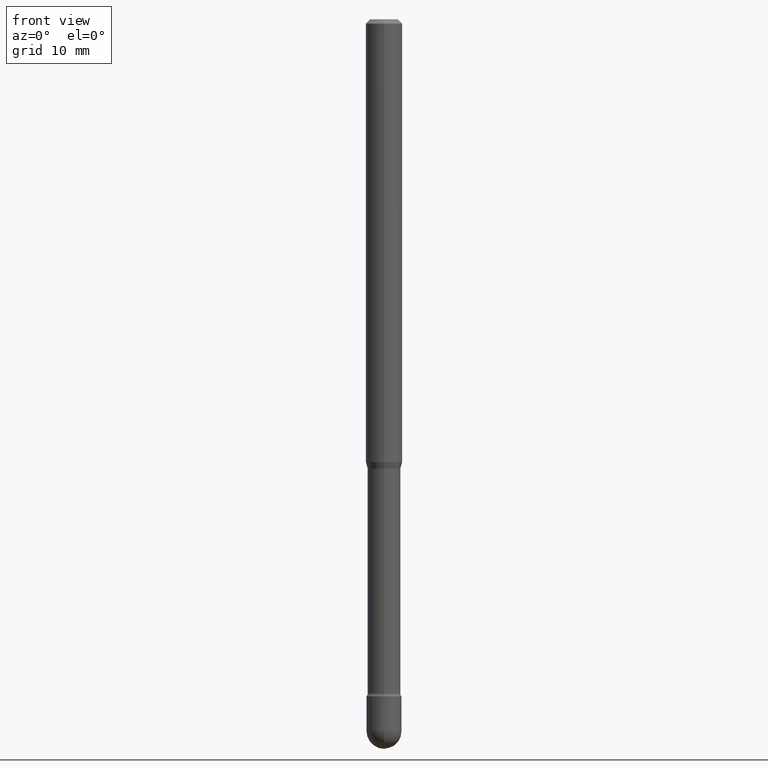
[diagram: clean part render]
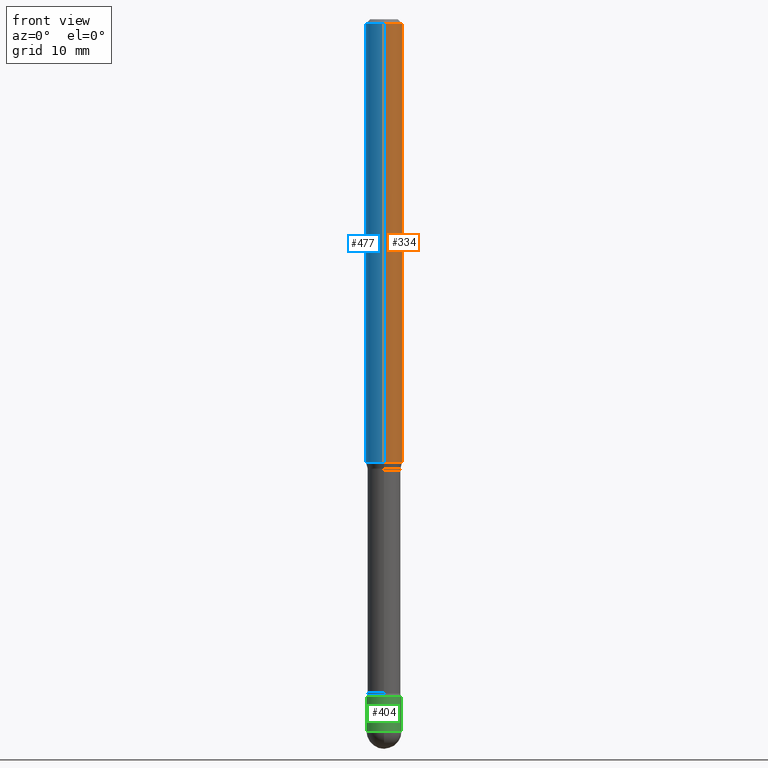
[diagram: same view with three faces highlighted in distinct colors, each labeled with its STEP entity id]
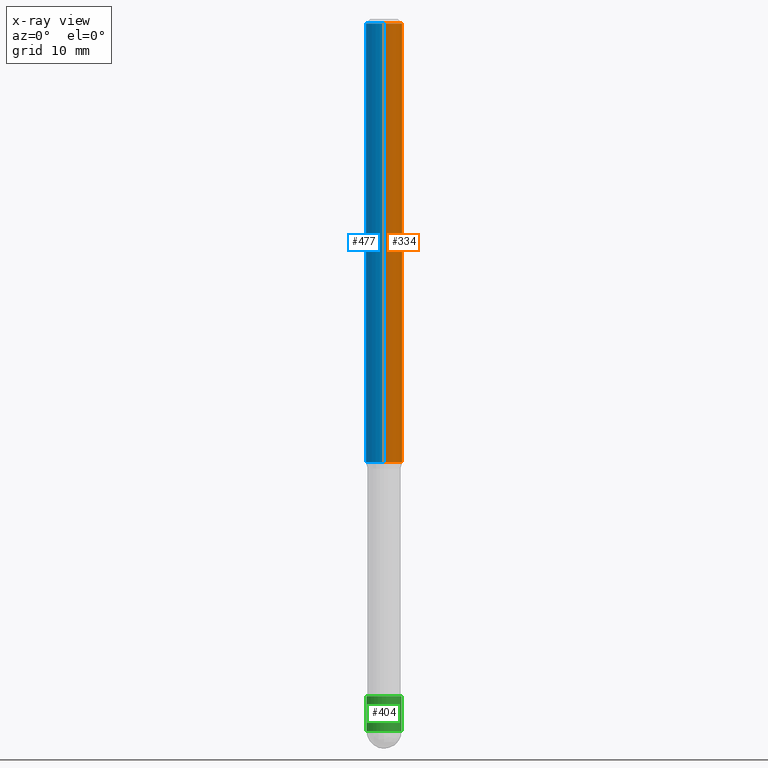
[diagram: x-ray of the same camera — body ghosted, the three highlighted faces saturated]
A machine part, front view with three faces highlighted in distinct colors.
The next image is the same camera in x-ray (body ghosted, the three faces saturated) — at least one of them is partly hidden behind the body in this view.
Their STEP definitions:

[orange] entity #334 — the highlighted cylindrical surface (edge-blend (fillet) strip) has radius 1.5875 mm, axis along (-0, 0, 1).
#12 = ORIENTED_EDGE ( 'NONE', *, *, #186, .T. ) ;
#19 = CARTESIAN_POINT ( 'NONE',  ( 3.668272627455988517E-31, -5.237122597482436421E-17, -0.01500000000000008271 ) ) ;
#29 = CARTESIAN_POINT ( 'NONE',  ( 3.710419832913296213E-29, -5.297295355763567225E-15, -1.517234490073829711 ) ) ;
#58 = DIRECTION ( 'NONE',  ( -6.982962677686265922E-15, -1.000000000000000000, 3.483106191921935554E-15 ) ) ;
#71 = DIRECTION ( 'NONE',  ( -2.445515084970645769E-29, 3.491415064988271555E-15, 1.000000000000000000 ) ) ;
#72 = VERTEX_POINT ( 'NONE', #231 ) ;
#81 = CARTESIAN_POINT ( 'NONE',  ( -4.364351673553912750E-16, -0.06250000000000005551, -0.01499999999999986587 ) ) ;
#125 = EDGE_CURVE ( 'NONE', #72, #446, #202, .T. ) ;
#142 = DIRECTION ( 'NONE',  ( -6.982962677686265922E-15, -1.000000000000000000, 4.370956789862821150E-15 ) ) ;
#150 = VECTOR ( 'NONE', #541, 39.37007874015748143 ) ;
#172 = DIRECTION ( 'NONE',  ( -2.445515084970645769E-29, 3.491415064988271555E-15, 1.000000000000000000 ) ) ;
#177 = AXIS2_PLACEMENT_3D ( 'NONE', #218, #533, #300 ) ;
#186 = EDGE_CURVE ( 'NONE', #446, #530, #335, .T. ) ;
#202 = CIRCLE ( 'NONE', #531, 0.06250000000000000000 ) ;
#206 = CARTESIAN_POINT ( 'NONE',  ( 4.440892098500625669E-16, 0.06250000000000000000, 2.598599573294790911E-16 ) ) ;
#218 = CARTESIAN_POINT ( 'NONE',  ( -1.169113584055446105E-44, 1.669184350826100908E-30, 4.780733988912460139E-16 ) ) ;
#231 = CARTESIAN_POINT ( 'NONE',  ( -4.364351673553543464E-16, -0.06250000000000527356, -1.517234490073829489 ) ) ;
#249 = VECTOR ( 'NONE', #71, 39.37007874015748143 ) ;
#286 = EDGE_CURVE ( 'NONE', #441, #530, #457, .T. ) ;
#300 = DIRECTION ( 'NONE',  ( -6.982962677686265922E-15, -1.000000000000000000, 3.491415064988271949E-15 ) ) ;
#334 = ADVANCED_FACE ( 'NONE', ( #431 ), #482, .T. ) ;
#335 = LINE ( 'NONE', #206, #150 ) ;
#338 = ORIENTED_EDGE ( 'NONE', *, *, #440, .F. ) ;
#356 = DIRECTION ( 'NONE',  ( -2.445515084970645769E-29, 3.491415064988271555E-15, 1.000000000000000000 ) ) ;
#359 = ORIENTED_EDGE ( 'NONE', *, *, #125, .T. ) ;
#406 = EDGE_LOOP ( 'NONE', ( #359, #12, #494, #338 ) ) ;
#422 = CARTESIAN_POINT ( 'NONE',  ( 4.440892098500998898E-16, 0.06249999999999993755, -0.01500000000000030129 ) ) ;
#431 = FACE_OUTER_BOUND ( 'NONE', #406, .T. ) ;
#440 = EDGE_CURVE ( 'NONE', #72, #441, #556, .T. ) ;
#441 = VERTEX_POINT ( 'NONE', #81 ) ;
#446 = VERTEX_POINT ( 'NONE', #558 ) ;
#457 = CIRCLE ( 'NONE', #468, 0.06250000000000000000 ) ;
#464 = CARTESIAN_POINT ( 'NONE',  ( -4.364351673553916201E-16, -0.06250000000000000000, 6.962868404530130354E-16 ) ) ;
#468 = AXIS2_PLACEMENT_3D ( 'NONE', #19, #172, #58 ) ;
#482 = CYLINDRICAL_SURFACE ( 'NONE', #177, 0.06250000000000000000 ) ;
#494 = ORIENTED_EDGE ( 'NONE', *, *, #286, .F. ) ;
#530 = VERTEX_POINT ( 'NONE', #422 ) ;
#531 = AXIS2_PLACEMENT_3D ( 'NONE', #29, #356, #142 ) ;
#533 = DIRECTION ( 'NONE',  ( -2.445515084970645769E-29, 3.491415064988271555E-15, 1.000000000000000000 ) ) ;
#541 = DIRECTION ( 'NONE',  ( -2.445515084970645769E-29, 3.491415064988271555E-15, 1.000000000000000000 ) ) ;
#556 = LINE ( 'NONE', #464, #249 ) ;
#558 = CARTESIAN_POINT ( 'NONE',  ( 4.440892098500996926E-16, 0.06249999999999472644, -1.517234490073829933 ) ) ;

[blue] entity #477 — the highlighted cylindrical surface (edge-blend (fillet) strip) has radius 1.5875 mm, axis along (-0, 0, 1).
#21 = EDGE_CURVE ( 'NONE', #530, #441, #317, .T. ) ;
#42 = AXIS2_PLACEMENT_3D ( 'NONE', #102, #492, #270 ) ;
#50 = CIRCLE ( 'NONE', #562, 0.06250000000000000000 ) ;
#71 = DIRECTION ( 'NONE',  ( -2.445515084970645769E-29, 3.491415064988271555E-15, 1.000000000000000000 ) ) ;
#72 = VERTEX_POINT ( 'NONE', #231 ) ;
#81 = CARTESIAN_POINT ( 'NONE',  ( -4.364351673553912750E-16, -0.06250000000000005551, -0.01499999999999986587 ) ) ;
#82 = EDGE_CURVE ( 'NONE', #446, #72, #50, .T. ) ;
#102 = CARTESIAN_POINT ( 'NONE',  ( 3.668272627455988517E-31, -5.237122597482436421E-17, -0.01500000000000008271 ) ) ;
#131 = ORIENTED_EDGE ( 'NONE', *, *, #440, .T. ) ;
#143 = DIRECTION ( 'NONE',  ( -2.445515084970645769E-29, 3.491415064988271555E-15, 1.000000000000000000 ) ) ;
#150 = VECTOR ( 'NONE', #541, 39.37007874015748143 ) ;
#186 = EDGE_CURVE ( 'NONE', #446, #530, #335, .T. ) ;
#190 = EDGE_LOOP ( 'NONE', ( #278, #507, #131, #238 ) ) ;
#206 = CARTESIAN_POINT ( 'NONE',  ( 4.440892098500625669E-16, 0.06250000000000000000, 2.598599573294790911E-16 ) ) ;
#231 = CARTESIAN_POINT ( 'NONE',  ( -4.364351673553543464E-16, -0.06250000000000527356, -1.517234490073829489 ) ) ;
#238 = ORIENTED_EDGE ( 'NONE', *, *, #21, .F. ) ;
#249 = VECTOR ( 'NONE', #71, 39.37007874015748143 ) ;
#270 = DIRECTION ( 'NONE',  ( -6.982962677686265922E-15, -1.000000000000000000, 3.483106191921935554E-15 ) ) ;
#278 = ORIENTED_EDGE ( 'NONE', *, *, #186, .F. ) ;
#287 = CYLINDRICAL_SURFACE ( 'NONE', #450, 0.06250000000000000000 ) ;
#315 = DIRECTION ( 'NONE',  ( -6.982962677686265922E-15, -1.000000000000000000, 4.370956789862821150E-15 ) ) ;
#317 = CIRCLE ( 'NONE', #42, 0.06250000000000000000 ) ;
#335 = LINE ( 'NONE', #206, #150 ) ;
#369 = CARTESIAN_POINT ( 'NONE',  ( -1.169113584055446105E-44, 1.669184350826100908E-30, 4.780733988912460139E-16 ) ) ;
#422 = CARTESIAN_POINT ( 'NONE',  ( 4.440892098500998898E-16, 0.06249999999999993755, -0.01500000000000030129 ) ) ;
#440 = EDGE_CURVE ( 'NONE', #72, #441, #556, .T. ) ;
#441 = VERTEX_POINT ( 'NONE', #81 ) ;
#446 = VERTEX_POINT ( 'NONE', #558 ) ;
#450 = AXIS2_PLACEMENT_3D ( 'NONE', #369, #502, #565 ) ;
#464 = CARTESIAN_POINT ( 'NONE',  ( -4.364351673553916201E-16, -0.06250000000000000000, 6.962868404530130354E-16 ) ) ;
#477 = ADVANCED_FACE ( 'NONE', ( #514 ), #287, .T. ) ;
#492 = DIRECTION ( 'NONE',  ( -2.445515084970645769E-29, 3.491415064988271555E-15, 1.000000000000000000 ) ) ;
#502 = DIRECTION ( 'NONE',  ( -2.445515084970645769E-29, 3.491415064988271555E-15, 1.000000000000000000 ) ) ;
#507 = ORIENTED_EDGE ( 'NONE', *, *, #82, .T. ) ;
#514 = FACE_OUTER_BOUND ( 'NONE', #190, .T. ) ;
#530 = VERTEX_POINT ( 'NONE', #422 ) ;
#541 = DIRECTION ( 'NONE',  ( -2.445515084970645769E-29, 3.491415064988271555E-15, 1.000000000000000000 ) ) ;
#550 = CARTESIAN_POINT ( 'NONE',  ( 3.710419832913296213E-29, -5.297295355763567225E-15, -1.517234490073829711 ) ) ;
#556 = LINE ( 'NONE', #464, #249 ) ;
#558 = CARTESIAN_POINT ( 'NONE',  ( 4.440892098500996926E-16, 0.06249999999999472644, -1.517234490073829933 ) ) ;
#562 = AXIS2_PLACEMENT_3D ( 'NONE', #550, #143, #315 ) ;
#565 = DIRECTION ( 'NONE',  ( -6.982962677686265922E-15, -1.000000000000000000, 3.491415064988271949E-15 ) ) ;

[green] entity #404 — the highlighted cylindrical surface (edge-blend (fillet) strip) has radius 1.524 mm, axis along (-0, 0, 1).
#26 = VERTEX_POINT ( 'NONE', #184 ) ;
#27 = VERTEX_POINT ( 'NONE', #350 ) ;
#36 = DIRECTION ( 'NONE',  ( 1.000000000000000000, -6.982962677686268288E-15, 0.000000000000000000 ) ) ;
#51 = ORIENTED_EDGE ( 'NONE', *, *, #521, .T. ) ;
#52 = AXIS2_PLACEMENT_3D ( 'NONE', #107, #279, #36 ) ;
#57 = EDGE_LOOP ( 'NONE', ( #153, #170, #51, #548, #63 ) ) ;
#59 = VECTOR ( 'NONE', #452, 39.37007874015748143 ) ;
#63 = ORIENTED_EDGE ( 'NONE', *, *, #362, .F. ) ;
#64 = CARTESIAN_POINT ( 'NONE',  ( -0.05999999999999999084, -7.883399944990626241E-15, -2.440000000000000391 ) ) ;
#70 = CARTESIAN_POINT ( 'NONE',  ( -4.263256414560001423E-16, -0.06000000000000849792, -2.439999999999999947 ) ) ;
#85 = VERTEX_POINT ( 'NONE', #70 ) ;
#104 = CIRCLE ( 'NONE', #341, 0.05999999999999999084 ) ;
#107 = CARTESIAN_POINT ( 'NONE',  ( 5.673487630349517039E-29, -8.100236706116098414E-15, -2.320000000000000284 ) ) ;
#109 = CARTESIAN_POINT ( 'NONE',  ( -0.05999999999999999084, 4.263256414560600464E-16, -2.951361054152942712E-30 ) ) ;
#116 = DIRECTION ( 'NONE',  ( -2.445468806185136597E-29, 3.491481338843145583E-15, 1.000000000000000000 ) ) ;
#121 = CIRCLE ( 'NONE', #52, 0.05999999999999999778 ) ;
#124 = CARTESIAN_POINT ( 'NONE',  ( 0.000000000000000000, 0.000000000000000000, 0.000000000000000000 ) ) ;
#130 = FACE_OUTER_BOUND ( 'NONE', #57, .T. ) ;
#133 = EDGE_CURVE ( 'NONE', #188, #27, #277, .T. ) ;
#152 = DIRECTION ( 'NONE',  ( 1.000000000000000000, -6.982962677686266711E-15, 4.876176775795935793E-29 ) ) ;
#153 = ORIENTED_EDGE ( 'NONE', *, *, #133, .F. ) ;
#167 = LINE ( 'NONE', #175, #387 ) ;
#170 = ORIENTED_EDGE ( 'NONE', *, *, #241, .T. ) ;
#175 = CARTESIAN_POINT ( 'NONE',  ( 0.05999999999999999084, -4.189777606611759435E-16, 2.925706065477561055E-30 ) ) ;
#184 = CARTESIAN_POINT ( 'NONE',  ( 0.05999999999999999778, -8.519214466777275048E-15, -2.320000000000000284 ) ) ;
#188 = VERTEX_POINT ( 'NONE', #64 ) ;
#224 = DIRECTION ( 'NONE',  ( -2.445468806185136597E-29, 3.491481338843145583E-15, 1.000000000000000000 ) ) ;
#241 = EDGE_CURVE ( 'NONE', #188, #85, #501, .T. ) ;
#259 = EDGE_CURVE ( 'NONE', #424, #26, #167, .T. ) ;
#277 = LINE ( 'NONE', #109, #59 ) ;
#279 = DIRECTION ( 'NONE',  ( -2.445468806185136597E-29, 3.491481338843145583E-15, 1.000000000000000000 ) ) ;
#290 = DIRECTION ( 'NONE',  ( -2.445468806185136597E-29, 3.491481338843145583E-15, 1.000000000000000000 ) ) ;
#305 = AXIS2_PLACEMENT_3D ( 'NONE', #486, #224, #391 ) ;
#341 = AXIS2_PLACEMENT_3D ( 'NONE', #519, #290, #525 ) ;
#350 = CARTESIAN_POINT ( 'NONE',  ( -0.06000000000000001166, -7.883399944990626241E-15, -2.320000000000000284 ) ) ;
#362 = EDGE_CURVE ( 'NONE', #27, #26, #121, .T. ) ;
#374 = CYLINDRICAL_SURFACE ( 'NONE', #532, 0.05999999999999999084 ) ;
#386 = DIRECTION ( 'NONE',  ( -2.445468806185136877E-29, 3.491481338843145188E-15, 1.000000000000000000 ) ) ;
#387 = VECTOR ( 'NONE', #386, 39.37007874015748143 ) ;
#391 = DIRECTION ( 'NONE',  ( 1.000000000000000000, -6.982962677686269077E-15, 0.000000000000000000 ) ) ;
#404 = ADVANCED_FACE ( 'NONE', ( #130 ), #374, .T. ) ;
#414 = CARTESIAN_POINT ( 'NONE',  ( 0.05999999999999999084, -8.728703347107863365E-15, -2.440000000000000391 ) ) ;
#424 = VERTEX_POINT ( 'NONE', #414 ) ;
#452 = DIRECTION ( 'NONE',  ( -2.445468806185136877E-29, 3.491481338843145188E-15, 1.000000000000000000 ) ) ;
#486 = CARTESIAN_POINT ( 'NONE',  ( 5.966943887091733341E-29, -8.519214466777275048E-15, -2.440000000000000391 ) ) ;
#501 = CIRCLE ( 'NONE', #305, 0.05999999999999999084 ) ;
#519 = CARTESIAN_POINT ( 'NONE',  ( 5.966943887091733341E-29, -8.519214466777275048E-15, -2.440000000000000391 ) ) ;
#521 = EDGE_CURVE ( 'NONE', #85, #424, #104, .T. ) ;
#525 = DIRECTION ( 'NONE',  ( 1.000000000000000000, -6.982962677686269077E-15, 0.000000000000000000 ) ) ;
#532 = AXIS2_PLACEMENT_3D ( 'NONE', #124, #116, #152 ) ;
#548 = ORIENTED_EDGE ( 'NONE', *, *, #259, .T. ) ;